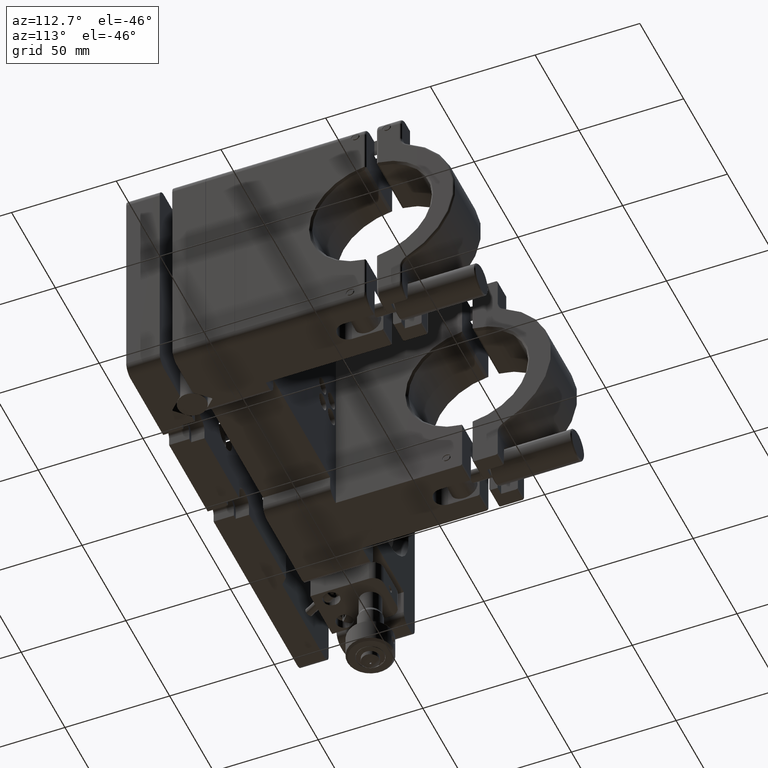
[diagram: clean part render]
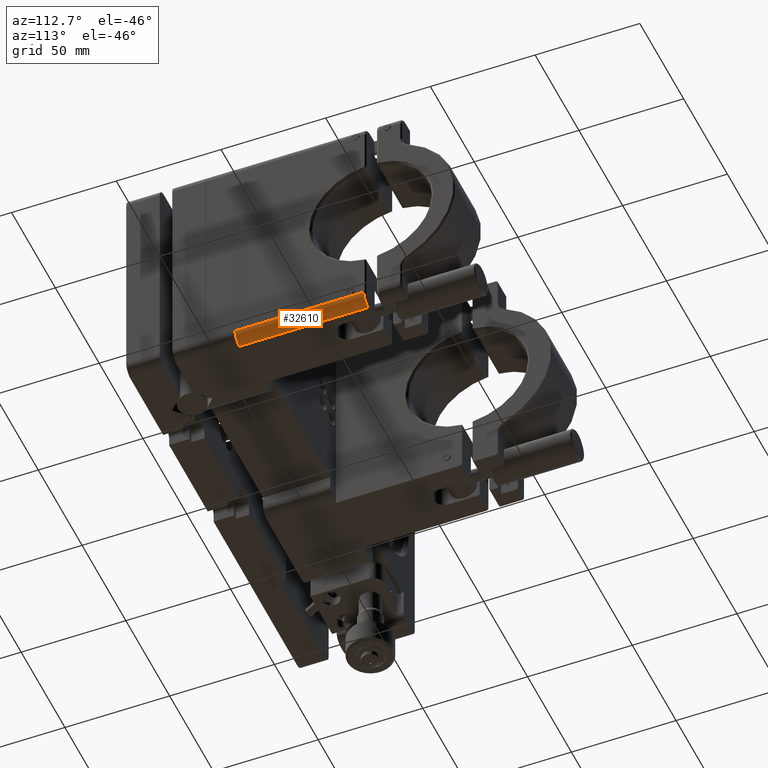
[diagram: same view with one face highlighted and labeled with its STEP entity id]
A machine part, auxiliary view. The second image highlights one B-rep face of the part: STEP entity #32610.
In plain terms, the highlighted cylindrical surface (edge-blend (fillet) strip) has radius 5 mm, axis along (-0, 1, 0).
Its self-contained STEP definition (entity closure, byte-faithful):
#138 = LINE ( 'NONE', #43516, #20365 ) ;
#295 = AXIS2_PLACEMENT_3D ( 'NONE', #39575, #36076, #6326 ) ;
#1227 = ORIENTED_EDGE ( 'NONE', *, *, #31417, .T. ) ;
#1801 = DIRECTION ( 'NONE',  ( -1.000000000000000000, -4.163336342344333082E-15, 1.387778780781444492E-15 ) ) ;
#3073 = AXIS2_PLACEMENT_3D ( 'NONE', #5515, #35072, #1801 ) ;
#3430 = DIRECTION ( 'NONE',  ( -4.608276850255684597E-15, 1.000000000000000000, 3.367765253687489441E-16 ) ) ;
#4560 = VERTEX_POINT ( 'NONE', #40474 ) ;
#5515 = CARTESIAN_POINT ( 'NONE',  ( 94.89407885232829187, 43.90000000000009095, -50.00000000000031974 ) ) ;
#6326 = DIRECTION ( 'NONE',  ( -1.000000000000000000, -4.163336342344333082E-15, 1.387778780781444492E-15 ) ) ;
#7139 = DIRECTION ( 'NONE',  ( 4.608276850255684597E-15, -1.000000000000000000, -3.367765253687489441E-16 ) ) ;
#10451 = CARTESIAN_POINT ( 'NONE',  ( 94.89407885232829187, 43.90000000000009805, -55.00000000000031974 ) ) ;
#10474 = VERTEX_POINT ( 'NONE', #40574 ) ;
#12154 = CIRCLE ( 'NONE', #22029, 5.000000000000004441 ) ;
#15872 = EDGE_CURVE ( 'NONE', #25662, #4560, #138, .T. ) ;
#16123 = DIRECTION ( 'NONE',  ( 1.000000000000000000, 5.551115123125777969E-15, -1.387778780781444492E-15 ) ) ;
#19685 = CARTESIAN_POINT ( 'NONE',  ( 94.89407885232802187, 105.4000000000002331, -55.00000000000029843 ) ) ;
#20365 = VECTOR ( 'NONE', #3430, 1000.000000000000000 ) ;
#20484 = VERTEX_POINT ( 'NONE', #19685 ) ;
#22029 = AXIS2_PLACEMENT_3D ( 'NONE', #39258, #39706, #16123 ) ;
#25021 = ORIENTED_EDGE ( 'NONE', *, *, #37445, .F. ) ;
#25662 = VERTEX_POINT ( 'NONE', #29278 ) ;
#28887 = FACE_OUTER_BOUND ( 'NONE', #29972, .T. ) ;
#29111 = CIRCLE ( 'NONE', #295, 5.000000000000004441 ) ;
#29278 = CARTESIAN_POINT ( 'NONE',  ( 99.89407885232830608, 43.90000000000018332, -50.00000000000031974 ) ) ;
#29400 = ORIENTED_EDGE ( 'NONE', *, *, #15872, .F. ) ;
#29721 = VECTOR ( 'NONE', #7139, 1000.000000000000000 ) ;
#29972 = EDGE_LOOP ( 'NONE', ( #25021, #1227, #29400, #36225 ) ) ;
#31417 = EDGE_CURVE ( 'NONE', #20484, #4560, #12154, .T. ) ;
#31548 = CYLINDRICAL_SURFACE ( 'NONE', #3073, 5.000000000000004441 ) ;
#32610 = ADVANCED_FACE ( 'NONE', ( #28887 ), #31548, .T. ) ;
#32955 = EDGE_CURVE ( 'NONE', #10474, #25662, #29111, .T. ) ;
#35072 = DIRECTION ( 'NONE',  ( -4.608276850255684597E-15, 1.000000000000000000, 3.367765253687489441E-16 ) ) ;
#36076 = DIRECTION ( 'NONE',  ( 4.608276850255684597E-15, -1.000000000000000000, -3.367765253687489441E-16 ) ) ;
#36225 = ORIENTED_EDGE ( 'NONE', *, *, #32955, .F. ) ;
#37445 = EDGE_CURVE ( 'NONE', #20484, #10474, #40613, .T. ) ;
#39258 = CARTESIAN_POINT ( 'NONE',  ( 94.89407885232802187, 105.4000000000001052, -50.00000000000029843 ) ) ;
#39575 = CARTESIAN_POINT ( 'NONE',  ( 94.89407885232829187, 43.90000000000009095, -50.00000000000031974 ) ) ;
#39706 = DIRECTION ( 'NONE',  ( 4.608276850255684597E-15, -1.000000000000000000, -3.367765253687489441E-16 ) ) ;
#40474 = CARTESIAN_POINT ( 'NONE',  ( 99.89407885232802187, 105.4000000000002473, -50.00000000000029843 ) ) ;
#40574 = CARTESIAN_POINT ( 'NONE',  ( 94.89407885232829187, 43.90000000000009805, -55.00000000000031974 ) ) ;
#40613 = LINE ( 'NONE', #10451, #29721 ) ;
#43516 = CARTESIAN_POINT ( 'NONE',  ( 99.89407885232814976, 106.4000000000002473, -50.00000000000029843 ) ) ;